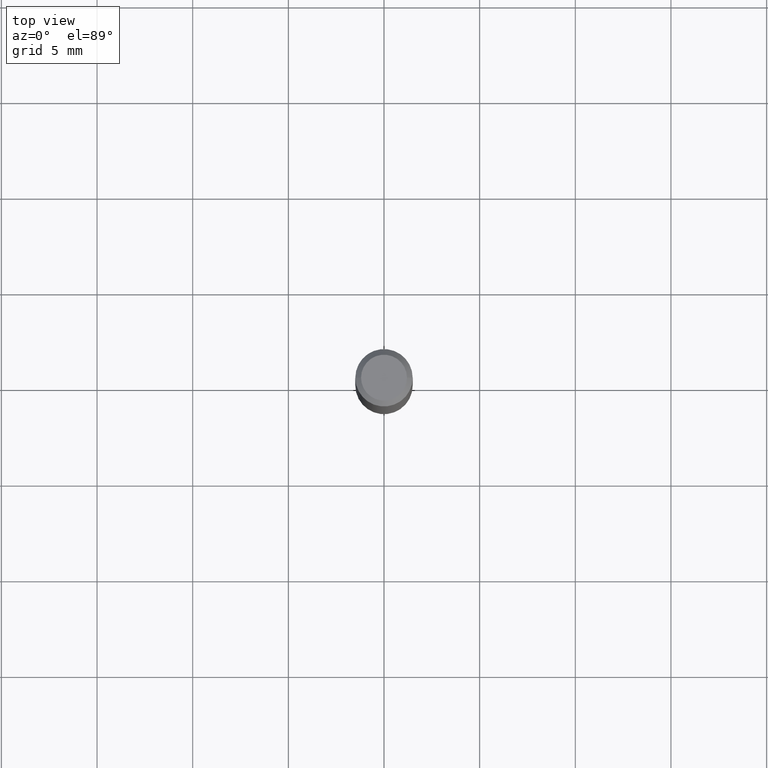
[diagram: clean part render]
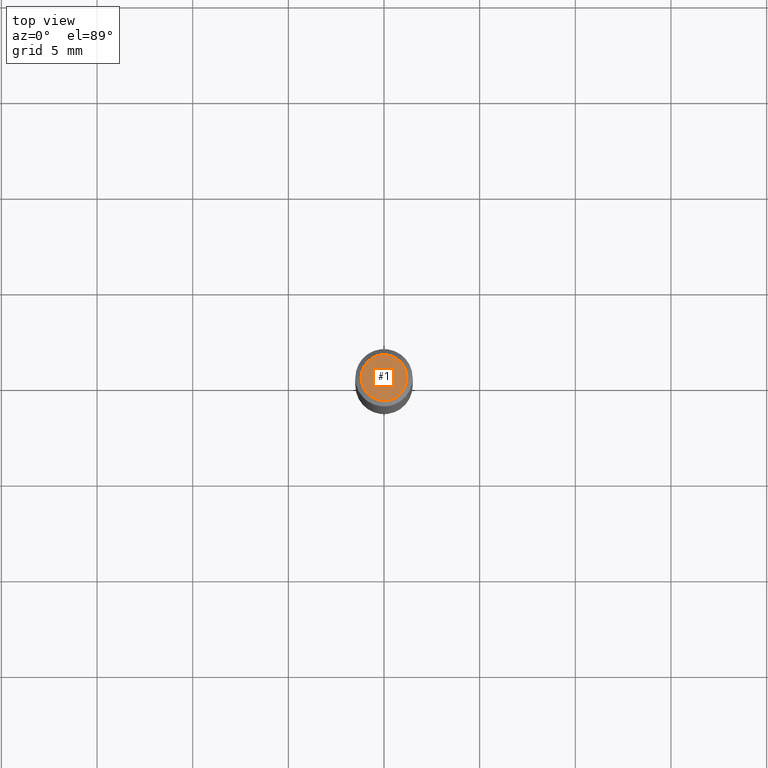
[diagram: same view with one face highlighted and labeled with its STEP entity id]
A machine part, top view. The second image highlights one B-rep face of the part: STEP entity #1.
In plain terms, the highlighted planar face has unit normal (0, -0, -1).
Its self-contained STEP definition (entity closure, byte-faithful):
#1 = ADVANCED_FACE ( 'NONE', ( #323 ), #472, .F. ) ;
#13 = DIRECTION ( 'NONE',  ( 1.000000000000000000, -6.982962677686266711E-15, 4.876185090822587894E-29 ) ) ;
#32 = CIRCLE ( 'NONE', #413, 0.04724000000000000421 ) ;
#44 = ORIENTED_EDGE ( 'NONE', *, *, #310, .T. ) ;
#57 = EDGE_LOOP ( 'NONE', ( #44, #465 ) ) ;
#95 = DIRECTION ( 'NONE',  ( 2.438088387897960049E-29, -3.491481338843145188E-15, -1.000000000000000000 ) ) ;
#111 = CARTESIAN_POINT ( 'NONE',  ( 8.265746106709734507E-48, -1.180129479067563789E-33, -3.380025165646692144E-19 ) ) ;
#182 = EDGE_CURVE ( 'NONE', #367, #356, #32, .T. ) ;
#188 = CARTESIAN_POINT ( 'NONE',  ( 0.04724000000000000421, -3.852183633974369345E-16, -3.380025165621689721E-19 ) ) ;
#235 = DIRECTION ( 'NONE',  ( -2.445468806185136597E-29, 3.491481338843145583E-15, 1.000000000000000000 ) ) ;
#248 = CARTESIAN_POINT ( 'NONE',  ( 4.132873053354867254E-48, -5.900647395337818946E-34, -1.690012582823346072E-19 ) ) ;
#274 = DIRECTION ( 'NONE',  ( -2.445468806185136597E-29, 3.491481338843145583E-15, 1.000000000000000000 ) ) ;
#297 = AXIS2_PLACEMENT_3D ( 'NONE', #111, #235, #421 ) ;
#310 = EDGE_CURVE ( 'NONE', #356, #367, #410, .T. ) ;
#316 = CARTESIAN_POINT ( 'NONE',  ( 8.265746106709734507E-48, -1.180129479067563789E-33, -3.380025165646692144E-19 ) ) ;
#323 = FACE_OUTER_BOUND ( 'NONE', #57, .T. ) ;
#337 = AXIS2_PLACEMENT_3D ( 'NONE', #248, #95, #370 ) ;
#356 = VERTEX_POINT ( 'NONE', #362 ) ;
#362 = CARTESIAN_POINT ( 'NONE',  ( -0.04724000000000000421, 3.504923541997677355E-16, -3.380025165670481712E-19 ) ) ;
#367 = VERTEX_POINT ( 'NONE', #188 ) ;
#370 = DIRECTION ( 'NONE',  ( -1.000000000000000000, 6.982962677686265922E-15, -4.876176775795935793E-29 ) ) ;
#410 = CIRCLE ( 'NONE', #297, 0.04724000000000000421 ) ;
#413 = AXIS2_PLACEMENT_3D ( 'NONE', #316, #274, #13 ) ;
#421 = DIRECTION ( 'NONE',  ( 1.000000000000000000, -6.982962677686266711E-15, 4.876185090822587894E-29 ) ) ;
#465 = ORIENTED_EDGE ( 'NONE', *, *, #182, .T. ) ;
#472 = PLANE ( 'NONE',  #337 ) ;